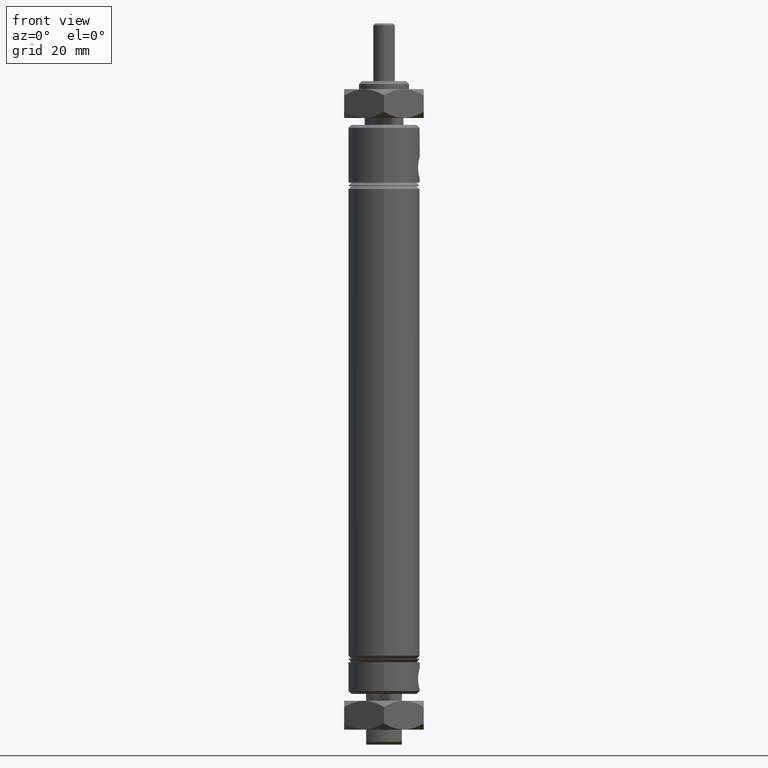
[diagram: clean part render]
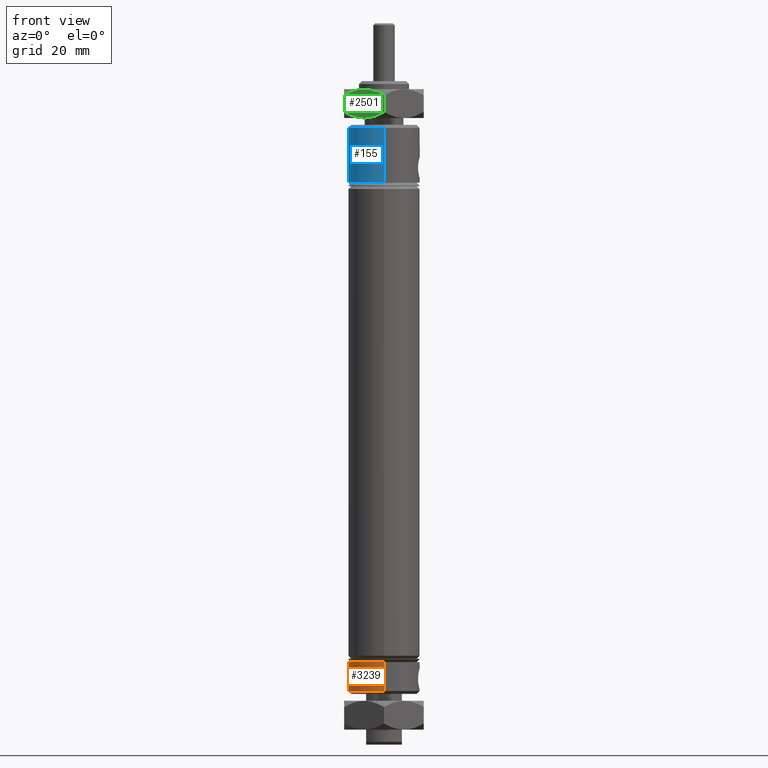
[diagram: same view with three faces highlighted in distinct colors, each labeled with its STEP entity id]
A machine part, front view with three faces highlighted in distinct colors.
Their STEP definitions:

[orange] entity #3239 — the highlighted cylindrical surface (edge-blend (fillet) strip) has radius 7.874 mm, axis along (0, 0, -1).
#21 = CARTESIAN_POINT ( 'NONE',  ( 3.796405077356791500E-017, -0.3099999999999998300, -5.750000000000000900 ) ) ;
#260 = AXIS2_PLACEMENT_3D ( 'NONE', #2823, #959, #3133 ) ;
#337 = CARTESIAN_POINT ( 'NONE',  ( 0.0000000000000000000, 0.3099999999999996100, -5.285000000000000100 ) ) ;
#542 = EDGE_CURVE ( 'NONE', #1634, #1106, #3953, .T. ) ;
#578 = DIRECTION ( 'NONE',  ( 0.0000000000000000000, 1.000000000000000000, 0.0000000000000000000 ) ) ;
#640 = CARTESIAN_POINT ( 'NONE',  ( 0.0000000000000000000, 0.3099999999999997800, -5.035000000000000100 ) ) ;
#704 = EDGE_CURVE ( 'NONE', #1106, #3281, #3649, .T. ) ;
#905 = CARTESIAN_POINT ( 'NONE',  ( 3.796405077356791500E-017, -0.3099999999999998900, -5.285000000000000100 ) ) ;
#959 = DIRECTION ( 'NONE',  ( 0.0000000000000000000, -8.860047547019248200E-017, 1.000000000000000000 ) ) ;
#978 = ORIENTED_EDGE ( 'NONE', *, *, #2502, .F. ) ;
#1049 = CARTESIAN_POINT ( 'NONE',  ( 0.0000000000000000000, 0.3099999999999997200, -5.750000000000000900 ) ) ;
#1106 = VERTEX_POINT ( 'NONE', #337 ) ;
#1241 = VERTEX_POINT ( 'NONE', #1338 ) ;
#1338 = CARTESIAN_POINT ( 'NONE',  ( 3.796405077356794500E-017, -0.3100000000000001600, -5.035000000000000100 ) ) ;
#1350 = EDGE_LOOP ( 'NONE', ( #2232, #978, #1978, #2679 ) ) ;
#1358 = VECTOR ( 'NONE', #2918, 39.37007874015748100 ) ;
#1485 = DIRECTION ( 'NONE',  ( -0.0000000000000000000, 3.444432108210942400E-017, 1.000000000000000000 ) ) ;
#1634 = VERTEX_POINT ( 'NONE', #640 ) ;
#1662 = EDGE_CURVE ( 'NONE', #1241, #3281, #1999, .T. ) ;
#1872 = CYLINDRICAL_SURFACE ( 'NONE', #3782, 0.3099999999999997800 ) ;
#1978 = ORIENTED_EDGE ( 'NONE', *, *, #542, .T. ) ;
#1999 = LINE ( 'NONE', #21, #2820 ) ;
#2072 = FACE_OUTER_BOUND ( 'NONE', #1350, .T. ) ;
#2232 = ORIENTED_EDGE ( 'NONE', *, *, #1662, .F. ) ;
#2502 = EDGE_CURVE ( 'NONE', #1634, #1241, #2761, .T. ) ;
#2509 = DIRECTION ( 'NONE',  ( -0.0000000000000000000, 8.860047547019231000E-017, -1.000000000000000000 ) ) ;
#2588 = AXIS2_PLACEMENT_3D ( 'NONE', #3342, #1485, #3667 ) ;
#2679 = ORIENTED_EDGE ( 'NONE', *, *, #704, .T. ) ;
#2761 = CIRCLE ( 'NONE', #2588, 0.3100000000000000000 ) ;
#2820 = VECTOR ( 'NONE', #2509, 39.37007874015748100 ) ;
#2823 = CARTESIAN_POINT ( 'NONE',  ( 0.0000000000000000000, -1.094954209352460500E-016, -5.285000000000000100 ) ) ;
#2918 = DIRECTION ( 'NONE',  ( -0.0000000000000000000, 8.860047547019231000E-017, -1.000000000000000000 ) ) ;
#3133 = DIRECTION ( 'NONE',  ( 0.0000000000000000000, 1.000000000000000000, 0.0000000000000000000 ) ) ;
#3239 = ADVANCED_FACE ( 'NONE', ( #2072 ), #1872, .T. ) ;
#3281 = VERTEX_POINT ( 'NONE', #905 ) ;
#3342 = CARTESIAN_POINT ( 'NONE',  ( 0.0000000000000000000, -1.734271566484209600E-016, -5.035000000000000100 ) ) ;
#3371 = CARTESIAN_POINT ( 'NONE',  ( 0.0000000000000000000, -6.829619984160658000E-017, -5.750000000000000900 ) ) ;
#3649 = CIRCLE ( 'NONE', #260, 0.3099999999999997800 ) ;
#3667 = DIRECTION ( 'NONE',  ( 0.0000000000000000000, -1.000000000000000000, 0.0000000000000000000 ) ) ;
#3782 = AXIS2_PLACEMENT_3D ( 'NONE', #3371, #3999, #578 ) ;
#3953 = LINE ( 'NONE', #1049, #1358 ) ;
#3999 = DIRECTION ( 'NONE',  ( -0.0000000000000000000, 8.860047547019231000E-017, -1.000000000000000000 ) ) ;

[blue] entity #155 — the highlighted cylindrical surface (edge-blend (fillet) strip) has radius 7.874 mm, axis along (0, 0, -1).
#26 = VERTEX_POINT ( 'NONE', #903 ) ;
#155 = ADVANCED_FACE ( 'NONE', ( #3558 ), #3455, .T. ) ;
#195 = DIRECTION ( 'NONE',  ( -0.0000000000000000000, 8.860047547019231000E-017, -1.000000000000000000 ) ) ;
#414 = VECTOR ( 'NONE', #1760, 39.37007874015748100 ) ;
#446 = CARTESIAN_POINT ( 'NONE',  ( 0.0000000000000000000, -5.418657412297845000E-016, -0.4050000000000007500 ) ) ;
#518 = DIRECTION ( 'NONE',  ( -0.0000000000000000000, 3.444432108210942400E-017, 1.000000000000000000 ) ) ;
#586 = EDGE_CURVE ( 'NONE', #2141, #1995, #3750, .T. ) ;
#590 = CARTESIAN_POINT ( 'NONE',  ( 0.0000000000000000000, 0.3099999999999992200, -0.4050000000000007500 ) ) ;
#743 = AXIS2_PLACEMENT_3D ( 'NONE', #3269, #2330, #782 ) ;
#766 = DIRECTION ( 'NONE',  ( 0.0000000000000000000, -1.000000000000000000, 0.0000000000000000000 ) ) ;
#782 = DIRECTION ( 'NONE',  ( 0.0000000000000000000, 1.000000000000000000, 0.0000000000000000000 ) ) ;
#811 = ORIENTED_EDGE ( 'NONE', *, *, #1416, .F. ) ;
#903 = CARTESIAN_POINT ( 'NONE',  ( 0.0000000000000000000, 0.3099999999999989400, -0.8799999999999998900 ) ) ;
#1140 = CARTESIAN_POINT ( 'NONE',  ( 0.0000000000000000000, 0.3099999999999997200, -5.750000000000000900 ) ) ;
#1245 = ORIENTED_EDGE ( 'NONE', *, *, #3938, .T. ) ;
#1412 = VERTEX_POINT ( 'NONE', #3316 ) ;
#1416 = EDGE_CURVE ( 'NONE', #2141, #1412, #1946, .T. ) ;
#1513 = ORIENTED_EDGE ( 'NONE', *, *, #586, .T. ) ;
#1760 = DIRECTION ( 'NONE',  ( -0.0000000000000000000, 8.860047547019231000E-017, -1.000000000000000000 ) ) ;
#1773 = CIRCLE ( 'NONE', #3052, 0.3099999999999989400 ) ;
#1846 = VECTOR ( 'NONE', #195, 39.37007874015748100 ) ;
#1946 = LINE ( 'NONE', #2994, #1846 ) ;
#1995 = VERTEX_POINT ( 'NONE', #590 ) ;
#2141 = VERTEX_POINT ( 'NONE', #3485 ) ;
#2292 = EDGE_LOOP ( 'NONE', ( #811, #1513, #2678, #1245 ) ) ;
#2330 = DIRECTION ( 'NONE',  ( -0.0000000000000000000, 8.860047547019231000E-017, -1.000000000000000000 ) ) ;
#2394 = CARTESIAN_POINT ( 'NONE',  ( 0.0000000000000000000, -3.031100255225628900E-017, -0.8799999999999998900 ) ) ;
#2633 = DIRECTION ( 'NONE',  ( -0.0000000000000000000, 8.860047547019042400E-017, -1.000000000000000000 ) ) ;
#2651 = AXIS2_PLACEMENT_3D ( 'NONE', #446, #2633, #766 ) ;
#2678 = ORIENTED_EDGE ( 'NONE', *, *, #3206, .T. ) ;
#2704 = DIRECTION ( 'NONE',  ( 0.0000000000000000000, -1.000000000000000000, 0.0000000000000000000 ) ) ;
#2994 = CARTESIAN_POINT ( 'NONE',  ( 3.796405077356791500E-017, -0.3099999999999998300, -5.750000000000000900 ) ) ;
#3052 = AXIS2_PLACEMENT_3D ( 'NONE', #2394, #518, #2704 ) ;
#3206 = EDGE_CURVE ( 'NONE', #1995, #26, #3947, .T. ) ;
#3269 = CARTESIAN_POINT ( 'NONE',  ( 0.0000000000000000000, -6.829619984160658000E-017, -5.750000000000000900 ) ) ;
#3316 = CARTESIAN_POINT ( 'NONE',  ( 3.796405077356784100E-017, -0.3099999999999989400, -0.8799999999999998900 ) ) ;
#3455 = CYLINDRICAL_SURFACE ( 'NONE', #743, 0.3099999999999997800 ) ;
#3485 = CARTESIAN_POINT ( 'NONE',  ( 3.796405077356792700E-017, -0.3100000000000003300, -0.4050000000000007500 ) ) ;
#3558 = FACE_OUTER_BOUND ( 'NONE', #2292, .T. ) ;
#3750 = CIRCLE ( 'NONE', #2651, 0.3099999999999997800 ) ;
#3938 = EDGE_CURVE ( 'NONE', #26, #1412, #1773, .T. ) ;
#3947 = LINE ( 'NONE', #1140, #414 ) ;

[green] entity #2501 — the highlighted planar face has unit normal (0.5, 0.866, 0).
#67 = CARTESIAN_POINT ( 'NONE',  ( -0.3449999999999998600, -0.1991858428704209600, 0.07162831425915830400 ) ) ;
#71 = B_SPLINE_CURVE_WITH_KNOTS ( 'NONE', 3,
 ( #3329, #1150, #1772, #3977, #2088, #219 ),
 .UNSPECIFIED., .F., .F.,
 ( 4, 2, 4 ),
 ( 0.005244698313908285500, 0.007848552836245147700, 0.01045240735858200800 ),
 .UNSPECIFIED. ) ;
#153 = CARTESIAN_POINT ( 'NONE',  ( -0.1573918424422377500, -0.3075014631385645800, -0.1249999999999999300 ) ) ;
#218 = DIRECTION ( 'NONE',  ( 0.4999999999999998300, 0.8660254037844388200, -0.0000000000000000000 ) ) ;
#219 = CARTESIAN_POINT ( 'NONE',  ( -1.707404996040164500E-016, -0.3983716857408416400, 0.07162831425915830400 ) ) ;
#367 = CARTESIAN_POINT ( 'NONE',  ( -0.2327215226736320000, -0.2640098519790006800, 0.1184725312384876500 ) ) ;
#379 = DIRECTION ( 'NONE',  ( -0.0000000000000000000, -0.0000000000000000000, -1.000000000000000000 ) ) ;
#423 = EDGE_CURVE ( 'NONE', #534, #1482, #1610, .T. ) ;
#534 = VERTEX_POINT ( 'NONE', #1974 ) ;
#604 = EDGE_CURVE ( 'NONE', #654, #1351, #2239, .T. ) ;
#654 = VERTEX_POINT ( 'NONE', #3419 ) ;
#658 = DIRECTION ( 'NONE',  ( -0.0000000000000000000, -0.0000000000000000000, -1.000000000000000000 ) ) ;
#670 = CARTESIAN_POINT ( 'NONE',  ( 0.0000000000000000000, -0.3983716857408416400, 0.1250000000000000000 ) ) ;
#697 = CARTESIAN_POINT ( 'NONE',  ( -0.1876081575577622000, -0.2900560654726980800, 0.1250000000000000300 ) ) ;
#703 = CARTESIAN_POINT ( 'NONE',  ( -0.2901696492470550700, -0.2308421606373951300, -0.1006089711357347900 ) ) ;
#725 = LINE ( 'NONE', #670, #1744 ) ;
#961 = EDGE_CURVE ( 'NONE', #1482, #2000, #71, .T. ) ;
#1005 = CARTESIAN_POINT ( 'NONE',  ( -0.2025046641832077800, -0.2814555633625118700, -0.1249999999999999200 ) ) ;
#1013 = ORIENTED_EDGE ( 'NONE', *, *, #1725, .F. ) ;
#1018 = CARTESIAN_POINT ( 'NONE',  ( -0.3449999999999998600, -0.1991858428704209600, -0.07162831425915827700 ) ) ;
#1083 = CARTESIAN_POINT ( 'NONE',  ( -0.05471315484396711800, -0.3667830310634636000, -0.1005168037935566100 ) ) ;
#1110 = FACE_OUTER_BOUND ( 'NONE', #1588, .T. ) ;
#1150 = CARTESIAN_POINT ( 'NONE',  ( -0.1424953358167920800, -0.3161019652487506200, 0.1250000000000000000 ) ) ;
#1306 = VECTOR ( 'NONE', #379, 39.37007874015748100 ) ;
#1351 = VERTEX_POINT ( 'NONE', #1727 ) ;
#1392 = CARTESIAN_POINT ( 'NONE',  ( -1.707404996040164500E-016, -0.3983716857408416400, -0.07162831425915827700 ) ) ;
#1482 = VERTEX_POINT ( 'NONE', #3323 ) ;
#1588 = EDGE_LOOP ( 'NONE', ( #2467, #2341, #3507, #2073, #2746, #1013 ) ) ;
#1610 = B_SPLINE_CURVE_WITH_KNOTS ( 'NONE', 3,
 ( #67, #3808, #1926, #2248, #367, #2555, #697, #2874 ),
 .UNSPECIFIED., .F., .F.,
 ( 4, 2, 2, 4 ),
 ( 2.544313504043476500E-007, 0.002622476372629345200, 0.003933587343268815000, 0.005244698313908285500 ),
 .UNSPECIFIED. ) ;
#1686 = VERTEX_POINT ( 'NONE', #2541 ) ;
#1702 = CARTESIAN_POINT ( 'NONE',  ( -0.09769872495540743400, -0.3419653005883539500, -0.1147058466047356400 ) ) ;
#1725 = EDGE_CURVE ( 'NONE', #1351, #1686, #3519, .T. ) ;
#1727 = CARTESIAN_POINT ( 'NONE',  ( -0.1724999999999999000, -0.2987787643056312700, -0.1250000000000000000 ) ) ;
#1744 = VECTOR ( 'NONE', #658, 39.37007874015748100 ) ;
#1772 = CARTESIAN_POINT ( 'NONE',  ( -0.1130008622559701300, -0.3331306074986975000, 0.1197024118602236500 ) ) ;
#1829 = EDGE_CURVE ( 'NONE', #534, #1686, #3805, .T. ) ;
#1926 = CARTESIAN_POINT ( 'NONE',  ( -0.2902868451560327600, -0.2307744975477989400, 0.1005168037935566100 ) ) ;
#1974 = CARTESIAN_POINT ( 'NONE',  ( -0.3449999999999998600, -0.1991858428704209600, 0.07162831425915830400 ) ) ;
#2000 = VERTEX_POINT ( 'NONE', #2760 ) ;
#2012 = CARTESIAN_POINT ( 'NONE',  ( -0.1420576345235315100, -0.3163546722082395400, -0.1236306849751667200 ) ) ;
#2071 = PLANE ( 'NONE',  #2791 ) ;
#2073 = ORIENTED_EDGE ( 'NONE', *, *, #423, .F. ) ;
#2074 = EDGE_CURVE ( 'NONE', #2000, #654, #725, .T. ) ;
#2088 = CARTESIAN_POINT ( 'NONE',  ( -0.02701915844896386800, -0.3827721673370552700, 0.08722783266294868700 ) ) ;
#2239 = B_SPLINE_CURVE_WITH_KNOTS ( 'NONE', 3,
 ( #1392, #3242, #1083, #1702, #3893, #2012, #153, #2332 ),
 .UNSPECIFIED., .F., .F.,
 ( 4, 2, 2, 4 ),
 ( 2.544313504036425000E-007, 0.002622476372629342600, 0.003933587343268812400, 0.005244698313908281200 ),
 .UNSPECIFIED. ) ;
#2248 = CARTESIAN_POINT ( 'NONE',  ( -0.2473012750445924800, -0.2555922280229086000, 0.1147058466047357800 ) ) ;
#2332 = CARTESIAN_POINT ( 'NONE',  ( -0.1724999999999999000, -0.2987787643056312700, -0.1250000000000000000 ) ) ;
#2341 = ORIENTED_EDGE ( 'NONE', *, *, #2074, .F. ) ;
#2407 = DIRECTION ( 'NONE',  ( -0.8660254037844388200, 0.4999999999999998300, 0.0000000000000000000 ) ) ;
#2467 = ORIENTED_EDGE ( 'NONE', *, *, #604, .F. ) ;
#2501 = ADVANCED_FACE ( 'NONE', ( #1110 ), #2071, .F. ) ;
#2541 = CARTESIAN_POINT ( 'NONE',  ( -0.3449999999999998600, -0.1991858428704209600, -0.07162831425915827700 ) ) ;
#2555 = CARTESIAN_POINT ( 'NONE',  ( -0.2029423654764684600, -0.2812028564030232800, 0.1236306849751667400 ) ) ;
#2565 = CARTESIAN_POINT ( 'NONE',  ( -0.2319991377440297200, -0.2644269211125651600, -0.1197024118602235700 ) ) ;
#2746 = ORIENTED_EDGE ( 'NONE', *, *, #1829, .T. ) ;
#2760 = CARTESIAN_POINT ( 'NONE',  ( -1.707404996040164500E-016, -0.3983716857408416400, 0.07162831425915830400 ) ) ;
#2791 = AXIS2_PLACEMENT_3D ( 'NONE', #3645, #218, #2407 ) ;
#2874 = CARTESIAN_POINT ( 'NONE',  ( -0.1724999999999999300, -0.2987787643056313300, 0.1250000000000000000 ) ) ;
#2883 = CARTESIAN_POINT ( 'NONE',  ( -0.3179808415510360100, -0.2147853612742073600, -0.08722783266294854800 ) ) ;
#3173 = CARTESIAN_POINT ( 'NONE',  ( -0.1724999999999999000, -0.2987787643056312700, -0.1250000000000000000 ) ) ;
#3224 = CARTESIAN_POINT ( 'NONE',  ( -0.3449999999999999200, -0.1991858428704208800, 0.1250000000000000000 ) ) ;
#3242 = CARTESIAN_POINT ( 'NONE',  ( -0.02705047038278063000, -0.3827540893836372500, -0.08724591061636263700 ) ) ;
#3323 = CARTESIAN_POINT ( 'NONE',  ( -0.1724999999999999300, -0.2987787643056313300, 0.1250000000000000000 ) ) ;
#3329 = CARTESIAN_POINT ( 'NONE',  ( -0.1724999999999999300, -0.2987787643056313300, 0.1250000000000000000 ) ) ;
#3419 = CARTESIAN_POINT ( 'NONE',  ( -1.707404996040164500E-016, -0.3983716857408416400, -0.07162831425915827700 ) ) ;
#3507 = ORIENTED_EDGE ( 'NONE', *, *, #961, .F. ) ;
#3519 = B_SPLINE_CURVE_WITH_KNOTS ( 'NONE', 3,
 ( #3173, #1005, #2565, #703, #2883, #1018 ),
 .UNSPECIFIED., .F., .F.,
 ( 4, 2, 4 ),
 ( 0.005244698313908281200, 0.007848552836245144300, 0.01045240735858200600 ),
 .UNSPECIFIED. ) ;
#3645 = CARTESIAN_POINT ( 'NONE',  ( 0.0000000000000000000, -0.3983716857408416400, 0.1250000000000000000 ) ) ;
#3805 = LINE ( 'NONE', #3224, #1306 ) ;
#3808 = CARTESIAN_POINT ( 'NONE',  ( -0.3179495296172192800, -0.2148034392276252400, 0.08724591061636261000 ) ) ;
#3893 = CARTESIAN_POINT ( 'NONE',  ( -0.1122784773263679100, -0.3335476766322619200, -0.1184725312384876000 ) ) ;
#3977 = CARTESIAN_POINT ( 'NONE',  ( -0.05483035075294468600, -0.3667153679738674500, 0.1006089711357348900 ) ) ;